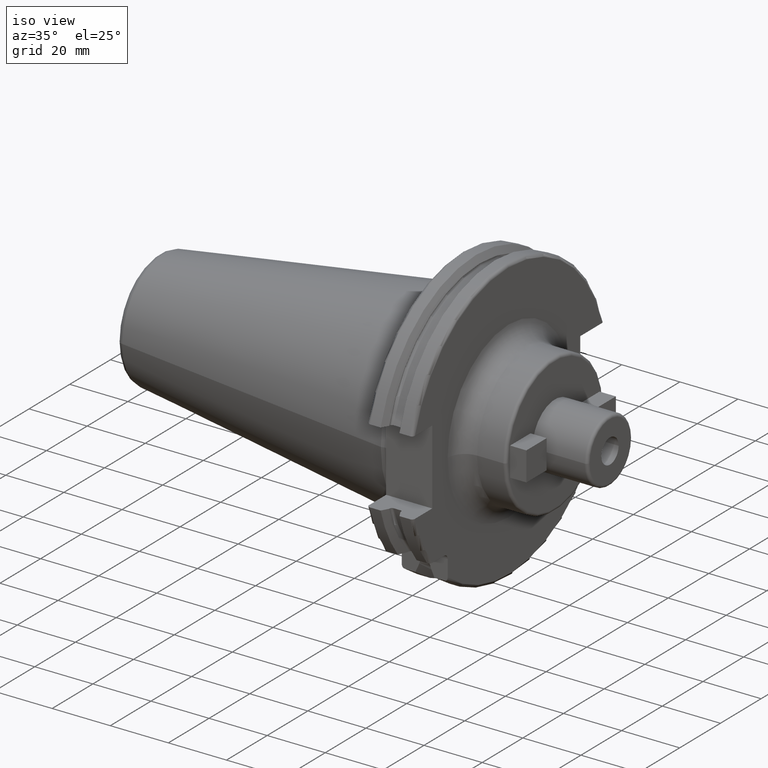
[diagram: clean part render]
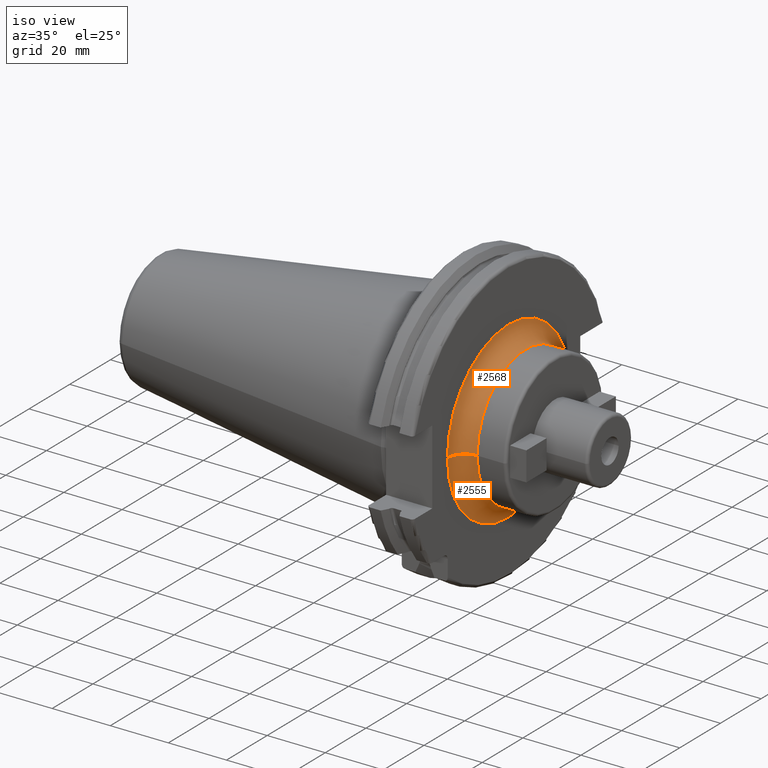
[diagram: same view with one multi-face feature highlighted, each face labeled with its STEP entity id]
A machine part, iso view. The highlighted faces form ONE feature: a constant-radius fillet chain: 2 tangent blend faces with common blend radius 6 mm. The faces share edges in the B-rep.
Their STEP definitions:
[1] entity #2555 (Torus):
#158=CARTESIAN_POINT('',(1.905E1,0.E0,0.E0));
#159=DIRECTION('',(1.E0,0.E0,0.E0));
#160=DIRECTION('',(0.E0,-1.E0,0.E0));
#161=AXIS2_PLACEMENT_3D('',#158,#159,#160);
#896=CARTESIAN_POINT('',(2.505E1,-3.E1,6.551703624069E-13));
#897=DIRECTION('',(0.E0,-2.183930120081E-14,-1.E0));
#898=DIRECTION('',(-1.E0,1.065814103640E-14,0.E0));
#899=AXIS2_PLACEMENT_3D('',#896,#897,#898);
#901=CARTESIAN_POINT('',(2.505E1,3.E1,-6.591116541443E-13));
#902=DIRECTION('',(0.E0,2.196940546151E-14,1.E0));
#903=DIRECTION('',(-1.E0,-1.125025998287E-14,0.E0));
#904=AXIS2_PLACEMENT_3D('',#901,#902,#903);
#935=CARTESIAN_POINT('',(2.505E1,0.E0,0.E0));
#936=DIRECTION('',(1.E0,0.E0,0.E0));
#937=DIRECTION('',(0.E0,-1.E0,0.E0));
#938=AXIS2_PLACEMENT_3D('',#935,#936,#937);
#1570=CARTESIAN_POINT('',(1.905E1,-3.E1,0.E0));
#1571=CARTESIAN_POINT('',(1.905E1,3.E1,0.E0));
#1572=VERTEX_POINT('',#1570);
#1573=VERTEX_POINT('',#1571);
#1574=CARTESIAN_POINT('',(2.505E1,-2.4E1,0.E0));
#1575=CARTESIAN_POINT('',(2.505E1,2.4E1,0.E0));
#1576=VERTEX_POINT('',#1574);
#1577=VERTEX_POINT('',#1575);
#2541=CARTESIAN_POINT('',(2.505E1,0.E0,0.E0));
#2542=DIRECTION('',(1.E0,0.E0,0.E0));
#2543=DIRECTION('',(0.E0,-9.999794752457E-1,6.406956165906E-3));
#2544=AXIS2_PLACEMENT_3D('',#2541,#2542,#2543);
#2545=TOROIDAL_SURFACE('',#2544,3.E1,6.E0);
#2546=ORIENTED_EDGE('',*,*,#1834,.F.);
#2548=ORIENTED_EDGE('',*,*,#2547,.T.);
#2550=ORIENTED_EDGE('',*,*,#2549,.T.);
#2552=ORIENTED_EDGE('',*,*,#2551,.F.);
#2553=EDGE_LOOP('',(#2546,#2548,#2550,#2552));
#2554=FACE_OUTER_BOUND('',#2553,.F.);
#2555=ADVANCED_FACE('',(#2554),#2545,.F.);
#162=CIRCLE('',#161,3.E1);
#900=CIRCLE('',#899,6.E0);
#905=CIRCLE('',#904,6.E0);
#939=CIRCLE('',#938,2.4E1);
#1834=EDGE_CURVE('',#1572,#1573,#162,.T.);
#2547=EDGE_CURVE('',#1572,#1576,#900,.T.);
#2549=EDGE_CURVE('',#1576,#1577,#939,.T.);
#2551=EDGE_CURVE('',#1573,#1577,#905,.T.);
[2] entity #2568 (Torus):
#163=CARTESIAN_POINT('',(1.905E1,0.E0,0.E0));
#164=DIRECTION('',(1.E0,0.E0,0.E0));
#165=DIRECTION('',(0.E0,1.E0,0.E0));
#166=AXIS2_PLACEMENT_3D('',#163,#164,#165);
#896=CARTESIAN_POINT('',(2.505E1,-3.E1,6.551703624069E-13));
#897=DIRECTION('',(0.E0,-2.183930120081E-14,-1.E0));
#898=DIRECTION('',(-1.E0,1.065814103640E-14,0.E0));
#899=AXIS2_PLACEMENT_3D('',#896,#897,#898);
#901=CARTESIAN_POINT('',(2.505E1,3.E1,-6.591116541443E-13));
#902=DIRECTION('',(0.E0,2.196940546151E-14,1.E0));
#903=DIRECTION('',(-1.E0,-1.125025998287E-14,0.E0));
#904=AXIS2_PLACEMENT_3D('',#901,#902,#903);
#911=CARTESIAN_POINT('',(2.505E1,0.E0,0.E0));
#912=DIRECTION('',(1.E0,0.E0,0.E0));
#913=DIRECTION('',(0.E0,1.E0,0.E0));
#914=AXIS2_PLACEMENT_3D('',#911,#912,#913);
#1570=CARTESIAN_POINT('',(1.905E1,-3.E1,0.E0));
#1571=CARTESIAN_POINT('',(1.905E1,3.E1,0.E0));
#1572=VERTEX_POINT('',#1570);
#1573=VERTEX_POINT('',#1571);
#1574=CARTESIAN_POINT('',(2.505E1,-2.4E1,0.E0));
#1575=CARTESIAN_POINT('',(2.505E1,2.4E1,0.E0));
#1576=VERTEX_POINT('',#1574);
#1577=VERTEX_POINT('',#1575);
#2556=CARTESIAN_POINT('',(2.505E1,0.E0,0.E0));
#2557=DIRECTION('',(1.E0,0.E0,0.E0));
#2558=DIRECTION('',(0.E0,9.999794752457E-1,-6.406956165906E-3));
#2559=AXIS2_PLACEMENT_3D('',#2556,#2557,#2558);
#2560=TOROIDAL_SURFACE('',#2559,3.E1,6.E0);
#2561=ORIENTED_EDGE('',*,*,#1836,.F.);
#2562=ORIENTED_EDGE('',*,*,#2551,.T.);
#2564=ORIENTED_EDGE('',*,*,#2563,.T.);
#2565=ORIENTED_EDGE('',*,*,#2547,.F.);
#2566=EDGE_LOOP('',(#2561,#2562,#2564,#2565));
#2567=FACE_OUTER_BOUND('',#2566,.F.);
#2568=ADVANCED_FACE('',(#2567),#2560,.F.);
#167=CIRCLE('',#166,3.E1);
#900=CIRCLE('',#899,6.E0);
#905=CIRCLE('',#904,6.E0);
#915=CIRCLE('',#914,2.4E1);
#1836=EDGE_CURVE('',#1573,#1572,#167,.T.);
#2547=EDGE_CURVE('',#1572,#1576,#900,.T.);
#2551=EDGE_CURVE('',#1573,#1577,#905,.T.);
#2563=EDGE_CURVE('',#1577,#1576,#915,.T.);